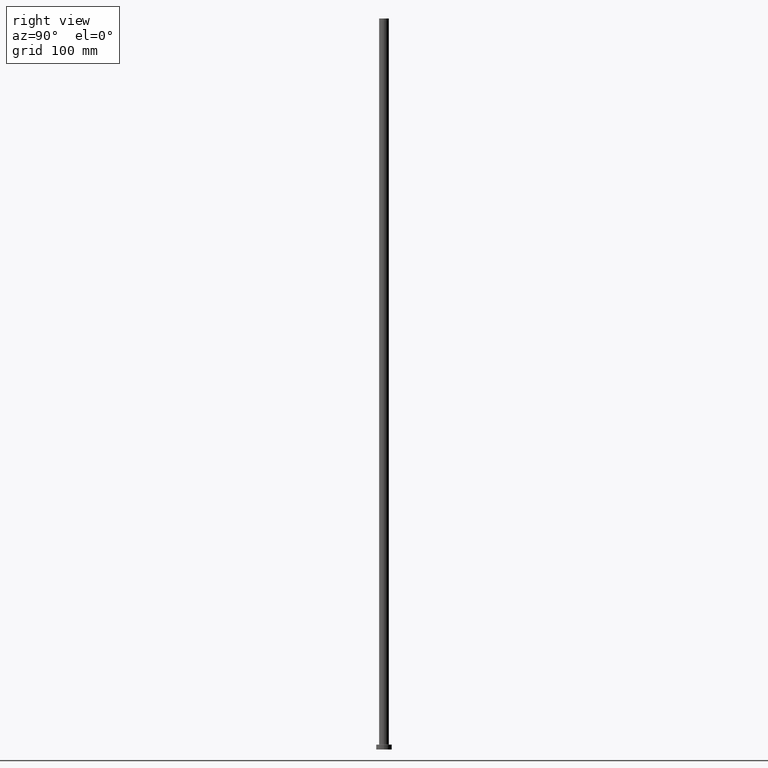
[diagram: clean part render]
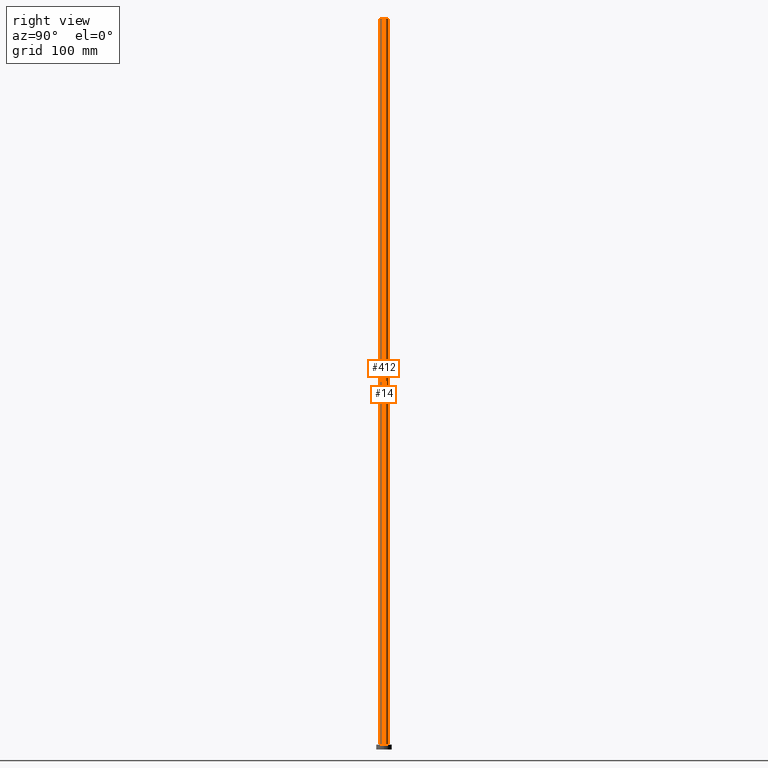
[diagram: same view with one multi-face feature highlighted, each face labeled with its STEP entity id]
A machine part, right view. The highlighted faces form ONE feature: a constant-radius fillet chain: 2 tangent blend faces with common blend radius 5 mm. The faces share edges in the B-rep.
Their STEP definitions:
[1] entity #14 (Cylinder):
#9 = VERTEX_POINT ( 'NONE', #165 ) ;
#14 = ADVANCED_FACE ( 'NONE', ( #455 ), #171, .T. ) ;
#32 = DIRECTION ( 'NONE',  ( 1.000000000000000000, 0.000000000000000000, 0.000000000000000000 ) ) ;
#34 = CARTESIAN_POINT ( 'NONE',  ( 0.000000000000000000, 0.000000000000000000, 750.0000000000000000 ) ) ;
#72 = CARTESIAN_POINT ( 'NONE',  ( 5.000000000000000000, 6.123233995736766282E-16, 750.0000000000000000 ) ) ;
#73 = DIRECTION ( 'NONE',  ( 0.000000000000000000, 0.000000000000000000, 1.000000000000000000 ) ) ;
#76 = VECTOR ( 'NONE', #366, 1000.000000000000000 ) ;
#78 = ORIENTED_EDGE ( 'NONE', *, *, #144, .T. ) ;
#89 = ORIENTED_EDGE ( 'NONE', *, *, #258, .T. ) ;
#96 = ORIENTED_EDGE ( 'NONE', *, *, #424, .F. ) ;
#102 = DIRECTION ( 'NONE',  ( -1.000000000000000000, 0.000000000000000000, 0.000000000000000000 ) ) ;
#128 = CIRCLE ( 'NONE', #168, 5.000000000000000000 ) ;
#135 = EDGE_CURVE ( 'NONE', #178, #9, #237, .T. ) ;
#138 = CARTESIAN_POINT ( 'NONE',  ( 5.000000000000000000, 6.123233995736766282E-16, 750.0000000000000000 ) ) ;
#144 = EDGE_CURVE ( 'NONE', #429, #218, #128, .T. ) ;
#148 = AXIS2_PLACEMENT_3D ( 'NONE', #208, #416, #102 ) ;
#165 = CARTESIAN_POINT ( 'NONE',  ( -5.000000000000000000, 0.000000000000000000, 750.0000000000000000 ) ) ;
#168 = AXIS2_PLACEMENT_3D ( 'NONE', #321, #73, #397 ) ;
#171 = CYLINDRICAL_SURFACE ( 'NONE', #148, 5.000000000000000000 ) ;
#178 = VERTEX_POINT ( 'NONE', #138 ) ;
#208 = CARTESIAN_POINT ( 'NONE',  ( 0.000000000000000000, 0.000000000000000000, 750.0000000000000000 ) ) ;
#218 = VERTEX_POINT ( 'NONE', #434 ) ;
#224 = DIRECTION ( 'NONE',  ( -0.000000000000000000, -0.000000000000000000, -1.000000000000000000 ) ) ;
#237 = CIRCLE ( 'NONE', #450, 5.000000000000000000 ) ;
#258 = EDGE_CURVE ( 'NONE', #178, #429, #402, .T. ) ;
#261 = VECTOR ( 'NONE', #224, 1000.000000000000000 ) ;
#266 = ORIENTED_EDGE ( 'NONE', *, *, #135, .F. ) ;
#321 = CARTESIAN_POINT ( 'NONE',  ( 0.000000000000000000, 0.000000000000000000, 5.499999999999949374 ) ) ;
#328 = LINE ( 'NONE', #334, #261 ) ;
#334 = CARTESIAN_POINT ( 'NONE',  ( -5.000000000000000000, 0.000000000000000000, 750.0000000000000000 ) ) ;
#366 = DIRECTION ( 'NONE',  ( -0.000000000000000000, -0.000000000000000000, -1.000000000000000000 ) ) ;
#389 = EDGE_LOOP ( 'NONE', ( #266, #89, #78, #96 ) ) ;
#397 = DIRECTION ( 'NONE',  ( 1.000000000000000000, 0.000000000000000000, 0.000000000000000000 ) ) ;
#402 = LINE ( 'NONE', #72, #76 ) ;
#416 = DIRECTION ( 'NONE',  ( -0.000000000000000000, -0.000000000000000000, -1.000000000000000000 ) ) ;
#420 = DIRECTION ( 'NONE',  ( 0.000000000000000000, 0.000000000000000000, 1.000000000000000000 ) ) ;
#424 = EDGE_CURVE ( 'NONE', #9, #218, #328, .T. ) ;
#429 = VERTEX_POINT ( 'NONE', #448 ) ;
#434 = CARTESIAN_POINT ( 'NONE',  ( -5.000000000000000000, 0.000000000000000000, 5.499999999999949374 ) ) ;
#448 = CARTESIAN_POINT ( 'NONE',  ( 5.000000000000000000, 6.123233995736766282E-16, 5.499999999999949374 ) ) ;
#450 = AXIS2_PLACEMENT_3D ( 'NONE', #34, #420, #32 ) ;
#455 = FACE_OUTER_BOUND ( 'NONE', #389, .T. ) ;
[2] entity #412 (Cylinder):
#9 = VERTEX_POINT ( 'NONE', #165 ) ;
#18 = FACE_OUTER_BOUND ( 'NONE', #340, .T. ) ;
#52 = DIRECTION ( 'NONE',  ( 1.000000000000000000, 0.000000000000000000, 0.000000000000000000 ) ) ;
#72 = CARTESIAN_POINT ( 'NONE',  ( 5.000000000000000000, 6.123233995736766282E-16, 750.0000000000000000 ) ) ;
#76 = VECTOR ( 'NONE', #366, 1000.000000000000000 ) ;
#82 = DIRECTION ( 'NONE',  ( -1.000000000000000000, 0.000000000000000000, 0.000000000000000000 ) ) ;
#120 = DIRECTION ( 'NONE',  ( -0.000000000000000000, -0.000000000000000000, -1.000000000000000000 ) ) ;
#122 = CARTESIAN_POINT ( 'NONE',  ( 0.000000000000000000, 0.000000000000000000, 5.499999999999949374 ) ) ;
#123 = DIRECTION ( 'NONE',  ( 0.000000000000000000, 0.000000000000000000, 1.000000000000000000 ) ) ;
#129 = AXIS2_PLACEMENT_3D ( 'NONE', #122, #378, #52 ) ;
#138 = CARTESIAN_POINT ( 'NONE',  ( 5.000000000000000000, 6.123233995736766282E-16, 750.0000000000000000 ) ) ;
#165 = CARTESIAN_POINT ( 'NONE',  ( -5.000000000000000000, 0.000000000000000000, 750.0000000000000000 ) ) ;
#178 = VERTEX_POINT ( 'NONE', #138 ) ;
#194 = CARTESIAN_POINT ( 'NONE',  ( 0.000000000000000000, 0.000000000000000000, 750.0000000000000000 ) ) ;
#218 = VERTEX_POINT ( 'NONE', #434 ) ;
#223 = ORIENTED_EDGE ( 'NONE', *, *, #436, .T. ) ;
#224 = DIRECTION ( 'NONE',  ( -0.000000000000000000, -0.000000000000000000, -1.000000000000000000 ) ) ;
#232 = CIRCLE ( 'NONE', #129, 5.000000000000000000 ) ;
#258 = EDGE_CURVE ( 'NONE', #178, #429, #402, .T. ) ;
#260 = CARTESIAN_POINT ( 'NONE',  ( 0.000000000000000000, 0.000000000000000000, 750.0000000000000000 ) ) ;
#261 = VECTOR ( 'NONE', #224, 1000.000000000000000 ) ;
#274 = ORIENTED_EDGE ( 'NONE', *, *, #424, .T. ) ;
#294 = AXIS2_PLACEMENT_3D ( 'NONE', #194, #123, #339 ) ;
#298 = ORIENTED_EDGE ( 'NONE', *, *, #447, .F. ) ;
#328 = LINE ( 'NONE', #334, #261 ) ;
#334 = CARTESIAN_POINT ( 'NONE',  ( -5.000000000000000000, 0.000000000000000000, 750.0000000000000000 ) ) ;
#339 = DIRECTION ( 'NONE',  ( 1.000000000000000000, 0.000000000000000000, 0.000000000000000000 ) ) ;
#340 = EDGE_LOOP ( 'NONE', ( #396, #298, #274, #223 ) ) ;
#366 = DIRECTION ( 'NONE',  ( -0.000000000000000000, -0.000000000000000000, -1.000000000000000000 ) ) ;
#378 = DIRECTION ( 'NONE',  ( 0.000000000000000000, 0.000000000000000000, 1.000000000000000000 ) ) ;
#396 = ORIENTED_EDGE ( 'NONE', *, *, #258, .F. ) ;
#402 = LINE ( 'NONE', #72, #76 ) ;
#412 = ADVANCED_FACE ( 'NONE', ( #18 ), #441, .T. ) ;
#424 = EDGE_CURVE ( 'NONE', #9, #218, #328, .T. ) ;
#429 = VERTEX_POINT ( 'NONE', #448 ) ;
#432 = AXIS2_PLACEMENT_3D ( 'NONE', #260, #120, #82 ) ;
#434 = CARTESIAN_POINT ( 'NONE',  ( -5.000000000000000000, 0.000000000000000000, 5.499999999999949374 ) ) ;
#436 = EDGE_CURVE ( 'NONE', #218, #429, #232, .T. ) ;
#441 = CYLINDRICAL_SURFACE ( 'NONE', #432, 5.000000000000000000 ) ;
#447 = EDGE_CURVE ( 'NONE', #9, #178, #451, .T. ) ;
#448 = CARTESIAN_POINT ( 'NONE',  ( 5.000000000000000000, 6.123233995736766282E-16, 5.499999999999949374 ) ) ;
#451 = CIRCLE ( 'NONE', #294, 5.000000000000000000 ) ;